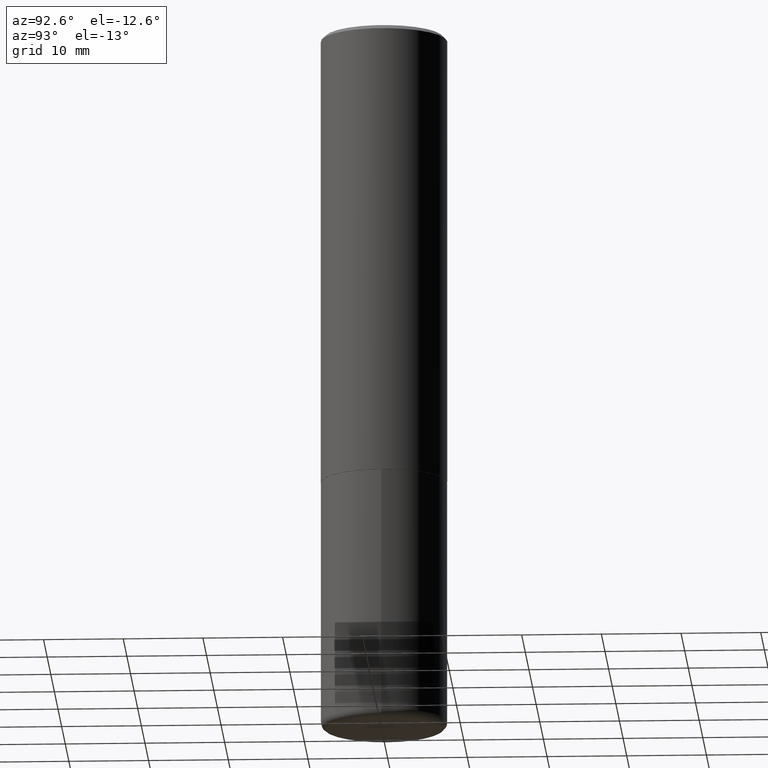
[diagram: clean part render]
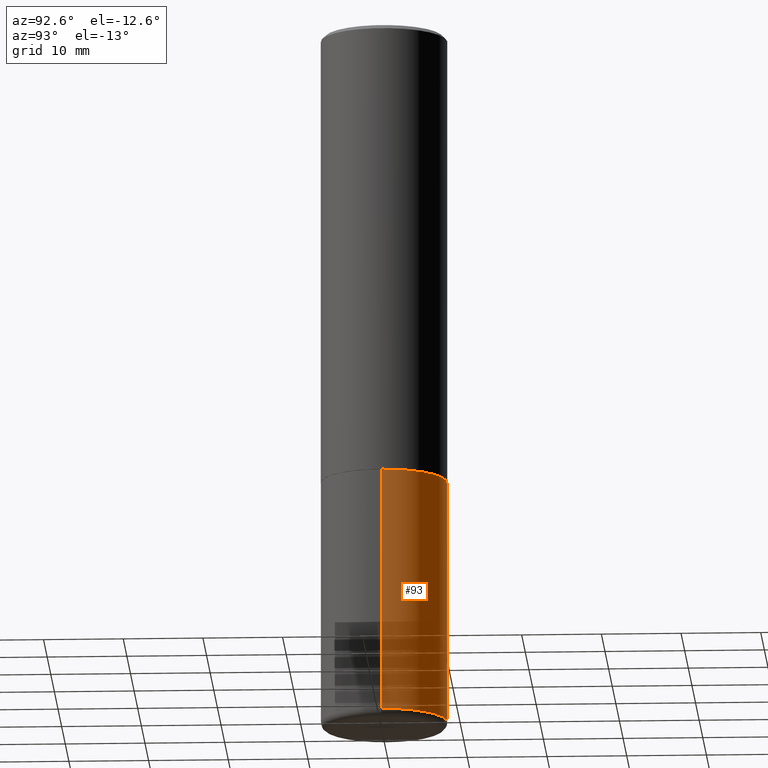
[diagram: same view with one face highlighted and labeled with its STEP entity id]
A machine part, auxiliary view. The second image highlights one B-rep face of the part: STEP entity #93.
In plain terms, the highlighted cylindrical surface (partial cylindrical patch) has radius 7.9375 mm, axis along (-0, 0, 1).
Its self-contained STEP definition (entity closure, byte-faithful):
#4 = CARTESIAN_POINT ( 'NONE',  ( 8.461322069400571907E-29, -1.208052543239728275E-14, -3.459999999999999520 ) ) ;
#27 = ORIENTED_EDGE ( 'NONE', *, *, #154, .F. ) ;
#34 = DIRECTION ( 'NONE',  ( 1.000000000000000000, -6.982962677686266711E-15, 4.876176775795936353E-29 ) ) ;
#41 = DIRECTION ( 'NONE',  ( 1.000000000000000000, -6.982962677686269077E-15, 0.000000000000000000 ) ) ;
#47 = VERTEX_POINT ( 'NONE', #313 ) ;
#67 = CARTESIAN_POINT ( 'NONE',  ( 0.3125000000000000000, -1.003800884917403522E-14, -2.249999999999999556 ) ) ;
#74 = CIRCLE ( 'NONE', #232, 0.3124999999999999445 ) ;
#93 = ADVANCED_FACE ( 'NONE', ( #262 ), #156, .T. ) ;
#102 = CARTESIAN_POINT ( 'NONE',  ( -0.3125000000000000000, 2.220446049250313081E-15, -1.537167215704658232E-29 ) ) ;
#108 = VERTEX_POINT ( 'NONE', #381 ) ;
#116 = EDGE_LOOP ( 'NONE', ( #280, #403, #27, #214 ) ) ;
#135 = EDGE_CURVE ( 'NONE', #211, #411, #350, .T. ) ;
#144 = EDGE_CURVE ( 'NONE', #108, #47, #300, .T. ) ;
#154 = EDGE_CURVE ( 'NONE', #411, #47, #324, .T. ) ;
#156 = CYLINDRICAL_SURFACE ( 'NONE', #278, 0.3125000000000000000 ) ;
#157 = VECTOR ( 'NONE', #202, 39.37007874015748143 ) ;
#166 = DIRECTION ( 'NONE',  ( 1.000000000000000000, -6.982962677686264344E-15, 0.000000000000000000 ) ) ;
#180 = CARTESIAN_POINT ( 'NONE',  ( 0.3125000000000001665, -1.426270126917424109E-14, -3.459999999999999520 ) ) ;
#202 = DIRECTION ( 'NONE',  ( -2.445468806185136877E-29, 3.491481338843145188E-15, 1.000000000000000000 ) ) ;
#211 = VERTEX_POINT ( 'NONE', #180 ) ;
#214 = ORIENTED_EDGE ( 'NONE', *, *, #135, .F. ) ;
#232 = AXIS2_PLACEMENT_3D ( 'NONE', #4, #297, #166 ) ;
#236 = DIRECTION ( 'NONE',  ( -2.445468806185136597E-29, 3.491481338843145583E-15, 1.000000000000000000 ) ) ;
#262 = FACE_OUTER_BOUND ( 'NONE', #116, .T. ) ;
#268 = DIRECTION ( 'NONE',  ( -2.445468806185136877E-29, 3.491481338843145188E-15, 1.000000000000000000 ) ) ;
#278 = AXIS2_PLACEMENT_3D ( 'NONE', #317, #414, #34 ) ;
#280 = ORIENTED_EDGE ( 'NONE', *, *, #394, .T. ) ;
#297 = DIRECTION ( 'NONE',  ( -2.445468806185136597E-29, 3.491481338843145583E-15, 1.000000000000000000 ) ) ;
#300 = LINE ( 'NONE', #102, #349 ) ;
#313 = CARTESIAN_POINT ( 'NONE',  ( -0.3125000000000000000, -7.747733173146866727E-15, -2.249999999999999556 ) ) ;
#317 = CARTESIAN_POINT ( 'NONE',  ( 0.000000000000000000, 0.000000000000000000, 0.000000000000000000 ) ) ;
#324 = CIRCLE ( 'NONE', #387, 0.3125000000000000000 ) ;
#349 = VECTOR ( 'NONE', #268, 39.37007874015748143 ) ;
#350 = LINE ( 'NONE', #397, #157 ) ;
#360 = CARTESIAN_POINT ( 'NONE',  ( 5.502304813916556222E-29, -7.855833012397076871E-15, -2.249999999999999556 ) ) ;
#381 = CARTESIAN_POINT ( 'NONE',  ( -0.3125000000000001665, -9.860079383146966509E-15, -3.459999999999999520 ) ) ;
#387 = AXIS2_PLACEMENT_3D ( 'NONE', #360, #236, #41 ) ;
#394 = EDGE_CURVE ( 'NONE', #211, #108, #74, .T. ) ;
#397 = CARTESIAN_POINT ( 'NONE',  ( 0.3125000000000000000, -2.182175836776958347E-15, 1.523805242436230075E-29 ) ) ;
#403 = ORIENTED_EDGE ( 'NONE', *, *, #144, .T. ) ;
#411 = VERTEX_POINT ( 'NONE', #67 ) ;
#414 = DIRECTION ( 'NONE',  ( -2.445468806185136597E-29, 3.491481338843145583E-15, 1.000000000000000000 ) ) ;